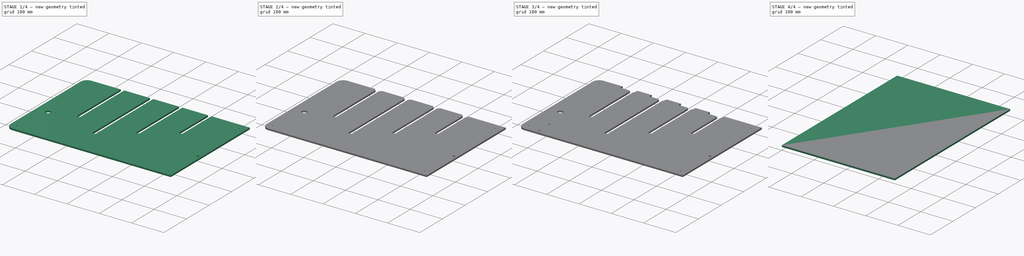
[diagram: build sequence overview — one tinted view per stage of 4, left to right]
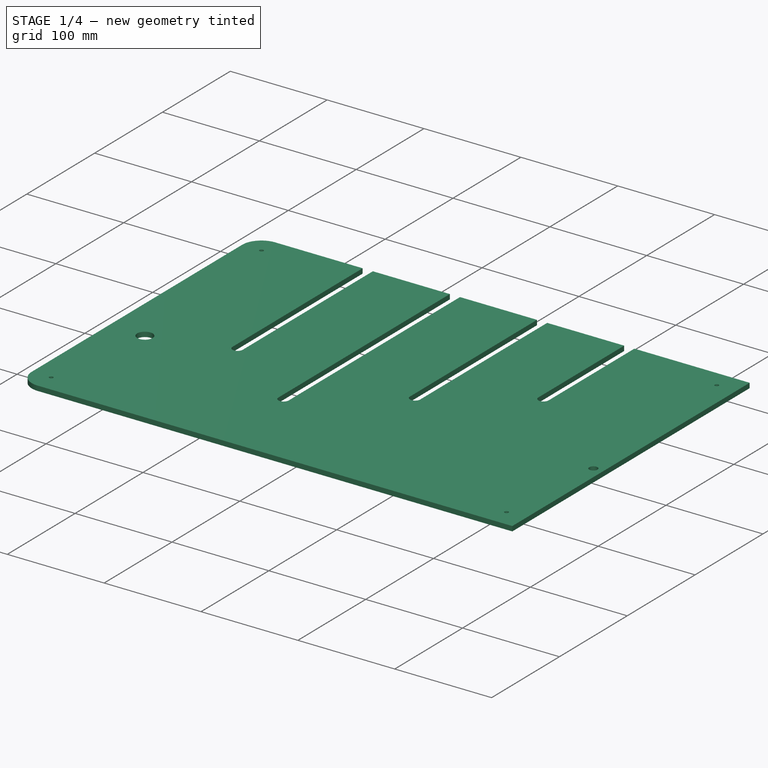
[diagram: stage 1 of 4 — iso view after this stage's code; geometry added in this stage tinted green]
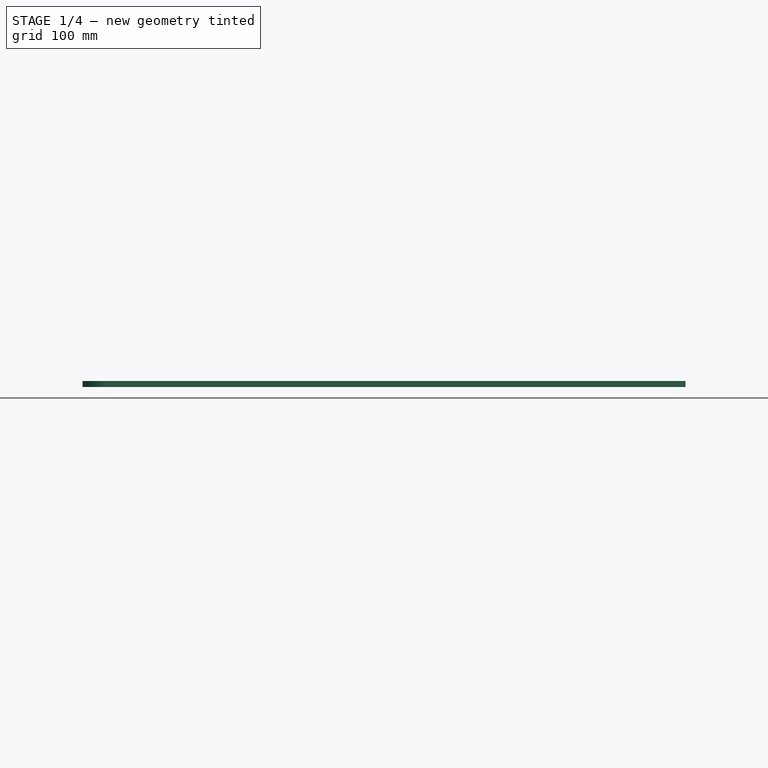
[diagram: stage 1 of 4 — front view after this stage's code; geometry added in this stage tinted green]
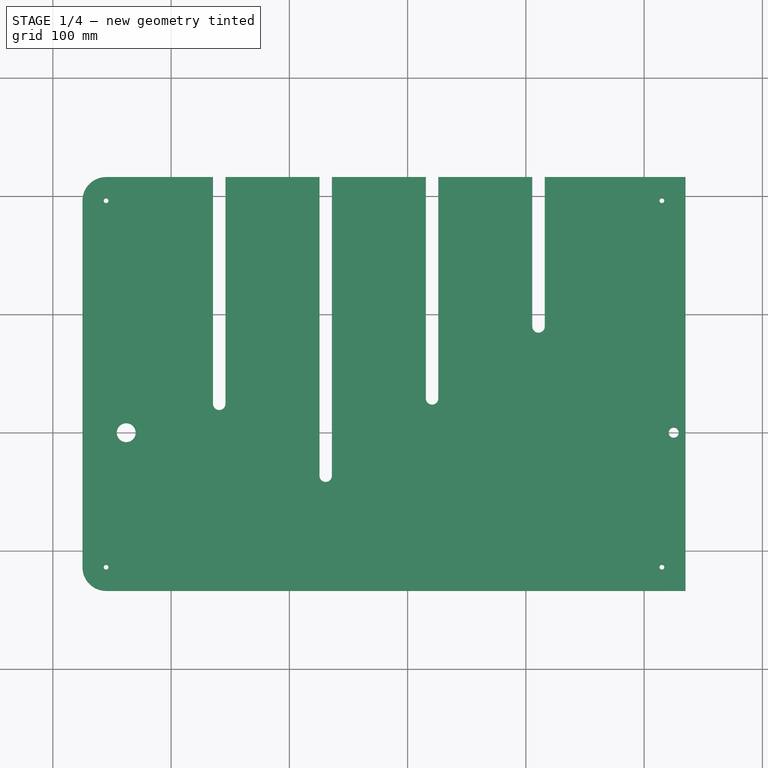
[diagram: stage 1 of 4 — top view after this stage's code; geometry added in this stage tinted green]
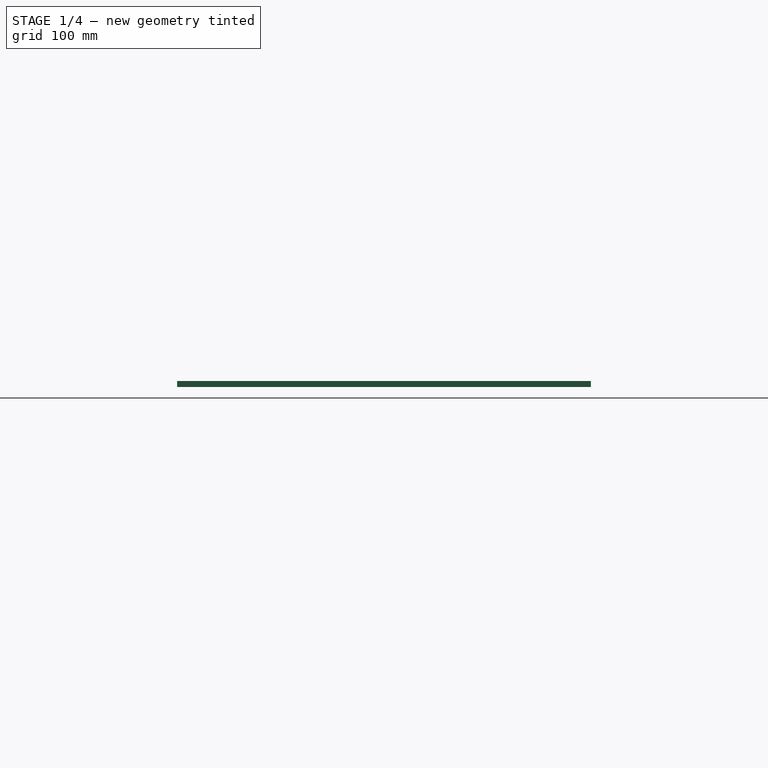
[diagram: stage 1 of 4 — right view after this stage's code; geometry added in this stage tinted green]
FCSTD DOCUMENT  (FreeCAD 0.19R23141 (Git))
Label: glass-cam
License: All rights reserved
LicenseURL: http://en.wikipedia.org/wiki/All_rights_reserved
objects: Path::FeaturePython×9, Sketcher::SketchObject×6, PartDesign::Pocket×4, PartDesign::Chamfer×4, Part::FeaturePython×4, App::FeaturePython×2, App::DocumentObjectGroup×2, Path::FeatureCompoundPython×2, PartDesign::ShapeBinder×1, PartDesign::Pad×1, PartDesign::Fillet×1, PartDesign::Body×1
note: 33 computed .brp shape members not serialized (recipe doc carries the construction recipe); baked Part::Feature solids carry a one-line shape summary decoded from their .brp

FEATURE [Sketcher::SketchObject] Sketch  label="MasterSketch"
  MapMode = 5
  sketch-geometry (22):
    g0: Circle CenterX=-238 CenterY=0 CenterZ=0 NormalX=0 NormalY=0 NormalZ=1 AngleXU=0 Radius=16.25
    g1: Circle CenterX=225 CenterY=0 CenterZ=0 NormalX=0 NormalY=0 NormalZ=1 AngleXU=0 Radius=79.25
    g2: Circle CenterX=-159.323 CenterY=24.4049 CenterZ=0 NormalX=0 NormalY=0 NormalZ=1 AngleXU=0 Radius=66.125
    g3: Circle CenterX=-69.3232 CenterY=-36.4177 CenterZ=0 NormalX=0 NormalY=0 NormalZ=1 AngleXU=0 Radius=55.625
    g4: Circle CenterX=20.6768 CenterY=28.9777 CenterZ=0 NormalX=0 NormalY=0 NormalZ=1 AngleXU=0 Radius=81.875
    g5: Circle CenterX=110.677 CenterY=89.8003 CenterZ=0 NormalX=0 NormalY=0 NormalZ=1 AngleXU=0 Radius=66.125
    g6: LineSegment StartX=-275 StartY=216.2 StartZ=0 EndX=275 EndY=216.2 EndZ=0
    g7: LineSegment StartX=275 StartY=216.2 StartZ=0 EndX=275 EndY=-133.8 EndZ=0
    g8: LineSegment StartX=275 StartY=-133.8 StartZ=0 EndX=-275 EndY=-133.8 EndZ=0
    g9: LineSegment StartX=-275 StartY=-133.8 StartZ=0 EndX=-275 EndY=216.2 EndZ=0
    g10: Circle CenterX=-159.323 CenterY=24.4049 CenterZ=0 NormalX=0 NormalY=0 NormalZ=1 AngleXU=0 Radius=53
    g11: Circle CenterX=-69.3232 CenterY=-36.4177 CenterZ=0 NormalX=0 NormalY=0 NormalZ=1 AngleXU=0 Radius=29.375
    g12: Circle CenterX=20.6768 CenterY=28.9777 CenterZ=0 NormalX=0 NormalY=0 NormalZ=1 AngleXU=0 Radius=42.5
    g13: Circle CenterX=110.677 CenterY=89.8003 CenterZ=0 NormalX=0 NormalY=0 NormalZ=1 AngleXU=0 Radius=13.625
    g14: Circle CenterX=225 CenterY=0 CenterZ=0 NormalX=0 NormalY=0 NormalZ=1 AngleXU=0 Radius=63.5
    g15: LineSegment [constr] StartX=-159.323 StartY=24.4049 StartZ=0 EndX=-159.323 EndY=0 EndZ=0
    g16: LineSegment [constr] StartX=-69.3232 StartY=-36.4177 StartZ=0 EndX=-69.3232 EndY=0 EndZ=0
    g17: LineSegment [constr] StartX=20.6768 StartY=28.9777 StartZ=0 EndX=20.6768 EndY=0 EndZ=0
    g18: LineSegment [constr] StartX=110.677 StartY=89.8003 StartZ=0 EndX=110.677 EndY=0 EndZ=0
    g19: LineSegment [constr] StartX=-159.323 StartY=0 StartZ=0 EndX=-69.3232 EndY=0 EndZ=0
    g20: LineSegment [constr] StartX=-69.3232 StartY=0 StartZ=0 EndX=20.6768 EndY=0 EndZ=0
    g21: LineSegment [constr] StartX=20.6768 StartY=0 StartZ=0 EndX=110.677 EndY=0 EndZ=0
  constraints (61):
    c: PointOnObject(g0,g-1)
    c: PointOnObject(g1,g-1)
    c: Coincident(g6,g7)
    c: Coincident(g7,g8)
    c: Coincident(g8,g9)
    c: Coincident(g9,g6)
    c: Horizontal(g6)
    c: Vertical(g7)
    c: Vertical(g9)
    c: DistanceX(g6,g6) = 550
    c: DistanceY(g9,g9) = 350
    c: Radius(g2) = 66.125
    c: Radius(g0) = 16.25
    c: Tangent(g2,g0)
    c: Radius(g3) = 55.625
    c: Coincident(g10,g2)
    c: Coincident(g11,g3)
    c: Coincident(g12,g4)
    c: Coincident(g13,g5)
    c: Coincident(g14,g1)
    c: Radius(g10) = 53
    c: Radius(g11) = 29.375
    c: Tangent(g3,g10)
    c: Tangent(g4,g11)
    c: Tangent(g5,g12)
    c: Tangent(g1,g5)
    c: Radius(g4) = 81.875
    c: Radius(g12) = 42.5
    c: Radius(g5) = 66.125
    c: Radius(g13) = 13.625
    c: Coincident(g15,g2)
    c: PointOnObject(g15,g-1)
    c: Coincident(g16,g3)
    c: PointOnObject(g16,g-1)
    c: Vertical(g16)
    c: Coincident(g17,g4)
    c: PointOnObject(g17,g-1)
    c: Vertical(g17)
    c: Coincident(g18,g5)
    c: PointOnObject(g18,g-1)
    c: Vertical(g18)
    c: Vertical(g15)
    c: Coincident(g19,g15)
    c: Coincident(g19,g16)
    c: Coincident(g20,g16)
    c: Coincident(g20,g17)
    c: Coincident(g21,g17)
    c: Coincident(g21,g18)
    c: Radius(g1) = 79.25
    c: Radius(g14) = 63.5
    c: Distance(g19) = 90
    c: DistanceX(g6,g0) = 37
    c: Symmetric(g8,g7,g-2)
    c: Equal(g19,g20)
    c: Equal(g20,g21)
    c: Distance(g2,g3) = 108.625
    c: Distance(g3,g4) = 111.25
    c: Distance(g4,g5) = 108.625
    c: Distance(g5,g1) = 145.375
    c: DistanceY(g8,g-1) = 133.8
    c: DistanceX(g1,g6) = 50
FEATURE [PartDesign::ShapeBinder] ShapeBinder003
  Support = -> [Sketch]
  TraceSupport = false
FEATURE [Sketcher::SketchObject] Sketch018
  ExternalGeometry = -> [ShapeBinder003]
  MapMode = 5
  Support = -> [XY_Plane011]
  sketch-geometry (4):
    g0: LineSegment StartX=-275 StartY=216.2 StartZ=0 EndX=235 EndY=216.2 EndZ=0
    g1: LineSegment StartX=235 StartY=216.2 StartZ=0 EndX=235 EndY=-133.8 EndZ=0
    g2: LineSegment StartX=235 StartY=-133.8 StartZ=0 EndX=-275 EndY=-133.8 EndZ=0
    g3: LineSegment StartX=-275 StartY=-133.8 StartZ=0 EndX=-275 EndY=216.2 EndZ=0
  constraints (11):
    c: Coincident(g2,g3)
    c: Coincident(g3,g0)
    c: Horizontal(g0)
    c: Horizontal(g2)
    c: Vertical(g1)
    c: Vertical(g3)
    c: Coincident(g0,g-3)
    c: Coincident(g2,g1)
    c: PointOnObject(g1,g-4)
    c: Coincident(g1,g0)
    c: DistanceX(g0,g-3) = 40
FEATURE [PartDesign::Pad] Pad015
  Direction = (1,1,1)
  Length = 5
  Length2 = 100
  Profile = -> Sketch018
  Refine = true
  Type = 0
FEATURE [Sketcher::SketchObject] Sketch019
  ExternalGeometry = -> [ShapeBinder003,Pad015]
  MapMode = 5
  Placement = pos=(0,0,5) rot=(0,0,1;0rad)
  Support = -> [Pad015]
  sketch-geometry (18):
    g0: Circle CenterX=-238 CenterY=0 CenterZ=0 NormalX=0 NormalY=0 NormalZ=1 AngleXU=0 Radius=8
    g1: Circle CenterX=225 CenterY=0 CenterZ=0 NormalX=0 NormalY=0 NormalZ=1 AngleXU=0 Radius=4.25
    g2: ArcOfCircle CenterX=-159.323 CenterY=24.4049 CenterZ=0 NormalX=0 NormalY=0 NormalZ=1 AngleXU=0 Radius=5.25 StartAngle=3.14159 EndAngle=6.28319
    g3: ArcOfCircle CenterX=-159.323 CenterY=216.2 CenterZ=0 NormalX=0 NormalY=0 NormalZ=1 AngleXU=0 Radius=5.25 StartAngle=7e-16 EndAngle=3.14159
    g4: LineSegment StartX=-154.073 StartY=24.4049 StartZ=0 EndX=-154.073 EndY=216.2 EndZ=0
    g5: LineSegment StartX=-164.573 StartY=24.4049 StartZ=0 EndX=-164.573 EndY=216.2 EndZ=0
    g6: ArcOfCircle CenterX=-69.3232 CenterY=-36.4177 CenterZ=0 NormalX=0 NormalY=0 NormalZ=1 AngleXU=0 Radius=5.25 StartAngle=3.14159 EndAngle=6.28319
    g7: ArcOfCircle CenterX=-69.3232 CenterY=216.2 CenterZ=0 NormalX=0 NormalY=0 NormalZ=1 AngleXU=0 Radius=5.25 StartAngle=1e-16 EndAngle=3.14159
    g8: LineSegment StartX=-64.0732 StartY=-36.4177 StartZ=0 EndX=-64.0732 EndY=216.2 EndZ=0
    g9: LineSegment StartX=-74.5732 StartY=-36.4177 StartZ=0 EndX=-74.5732 EndY=216.2 EndZ=0
    g10: ArcOfCircle CenterX=20.6768 CenterY=28.9777 CenterZ=0 NormalX=0 NormalY=0 NormalZ=1 AngleXU=0 Radius=5.25 StartAngle=3.14159 EndAngle=6.28319
    g11: ArcOfCircle CenterX=20.6768 CenterY=216.2 CenterZ=0 NormalX=0 NormalY=0 NormalZ=1 AngleXU=0 Radius=5.25 StartAngle=6e-16 EndAngle=3.14159
    g12: LineSegment StartX=25.9268 StartY=28.9777 StartZ=0 EndX=25.9268 EndY=216.2 EndZ=0
    g13: LineSegment StartX=15.4268 StartY=28.9777 StartZ=0 EndX=15.4268 EndY=216.2 EndZ=0
    g14: ArcOfCircle CenterX=110.677 CenterY=89.8003 CenterZ=0 NormalX=0 NormalY=0 NormalZ=1 AngleXU=0 Radius=5.25 StartAngle=3.14159 EndAngle=6.28319
    g15: ArcOfCircle CenterX=110.677 CenterY=216.2 CenterZ=0 NormalX=0 NormalY=0 NormalZ=1 AngleXU=0 Radius=5.25 StartAngle=-1.8e-15 EndAngle=3.14159
    g16: LineSegment StartX=115.927 StartY=89.8003 StartZ=0 EndX=115.927 EndY=216.2 EndZ=0
    g17: LineSegment StartX=105.427 StartY=89.8003 StartZ=0 EndX=105.427 EndY=216.2 EndZ=0
  constraints (40):
    c: Coincident(g0,g-4)
    c: Coincident(g1,g-9)
    c: Tangent(g2,g5)
    c: Tangent(g2,g4)
    c: Tangent(g4,g3)
    c: Tangent(g5,g3)
    c: Vertical(g4)
    c: Equal(g2,g3)
    c: Coincident(g2,g-3)
    c: Tangent(g6,g9)
    c: Tangent(g6,g8)
    c: Tangent(g8,g7)
    c: Tangent(g9,g7)
    c: Vertical(g8)
    c: Equal(g6,g7)
    c: Coincident(g6,g-5)
    c: Tangent(g10,g13)
    c: Tangent(g10,g12)
    c: Tangent(g12,g11)
    c: Tangent(g13,g11)
    c: Vertical(g12)
    c: Equal(g10,g11)
    c: Coincident(g10,g-6)
    c: Tangent(g14,g17)
    c: Tangent(g14,g16)
    c: Tangent(g16,g15)
    c: Tangent(g17,g15)
    c: Vertical(g16)
    c: Equal(g14,g15)
    c: Coincident(g14,g-8)
    c: Equal(g3,g7)
    c: Equal(g7,g11)
    c: Equal(g11,g15)
    c: PointOnObject(g3,g-7)
    c: PointOnObject(g7,g-7)
    c: PointOnObject(g11,g-7)
    c: PointOnObject(g15,g-7)
    c: Radius(g0) = 8
    c: Radius(g1) = 4.25
    c: Radius(g2) = 5.25
FEATURE [PartDesign::Pocket] Pocket011
  BaseFeature = -> Pad015
  Length = 5
  Length2 = 100
  Profile = -> Sketch019
  Refine = true
  Type = 1
FEATURE [PartDesign::Fillet] Fillet005
  Base = -> Pocket011 [Edge4,Edge48]
  BaseFeature = -> Pocket011
  Radius = 20
  Refine = true
  SupportTransform = false
FEATURE [Sketcher::SketchObject] Sketch020
  ExternalGeometry = -> [Fillet005]
  MapMode = 5
  Placement = pos=(0,0,5) rot=(0,0,1;0rad)
  Support = -> [Fillet005]
  sketch-geometry (4):
    g0: Circle CenterX=-255 CenterY=196.2 CenterZ=0 NormalX=0 NormalY=0 NormalZ=1 AngleXU=0 Radius=2
    g1: Circle CenterX=-255 CenterY=-113.8 CenterZ=0 NormalX=0 NormalY=0 NormalZ=1 AngleXU=0 Radius=2
    g2: Circle CenterX=215 CenterY=-113.8 CenterZ=0 NormalX=0 NormalY=0 NormalZ=1 AngleXU=0 Radius=2
    g3: Circle CenterX=215 CenterY=196.2 CenterZ=0 NormalX=0 NormalY=0 NormalZ=1 AngleXU=0 Radius=2
  constraints (10):
    c: Coincident(g0,g-3)
    c: Coincident(g1,g-4)
    c: Equal(g3,g0)
    c: Equal(g0,g1)
    c: Equal(g1,g2)
    c: Radius(g1) = 2
    c: Horizontal(g3,g0)
    c: Horizontal(g2,g1)
    c: DistanceX(g3,g-5) = 20
    c: DistanceX(g2,g-5) = 20
FEATURE [PartDesign::Pocket] Pocket012
  BaseFeature = -> Fillet005
  Length = 5
  Length2 = 100
  Profile = -> Sketch020
  Refine = true
  Type = 1
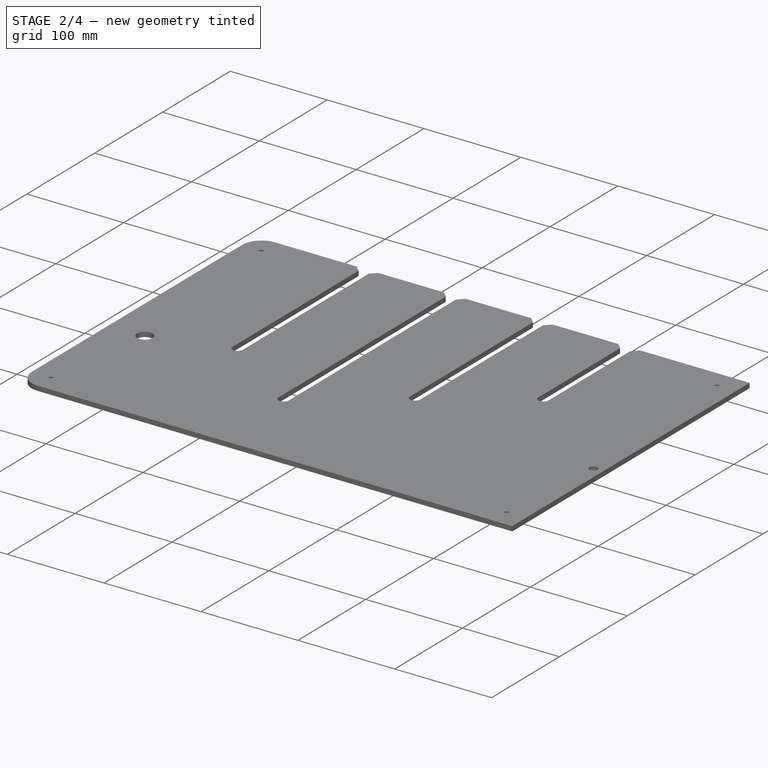
[diagram: stage 2 of 4 — iso view after this stage's code; geometry added in this stage tinted green]
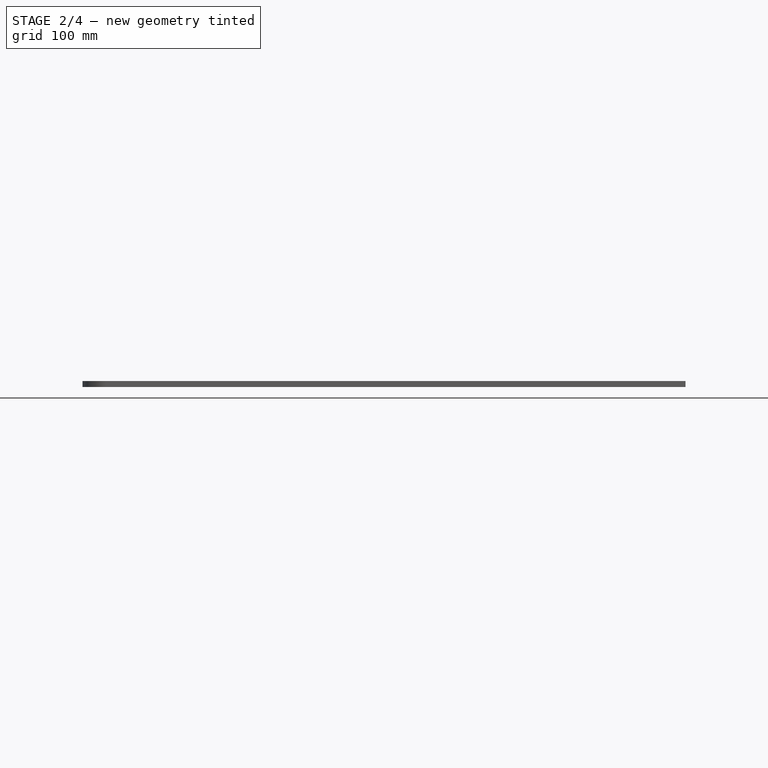
[diagram: stage 2 of 4 — front view after this stage's code; geometry added in this stage tinted green]
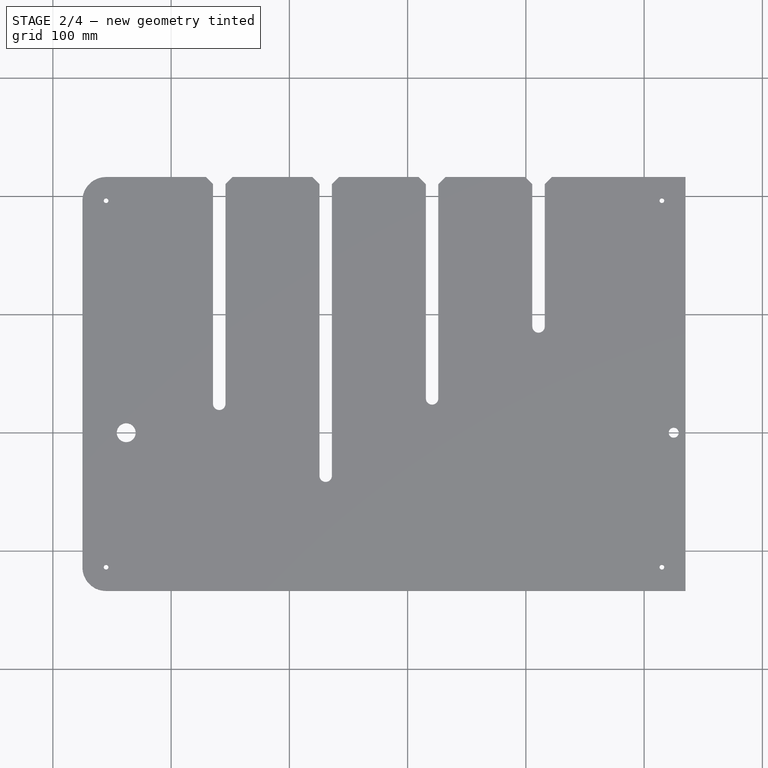
[diagram: stage 2 of 4 — top view after this stage's code; geometry added in this stage tinted green]
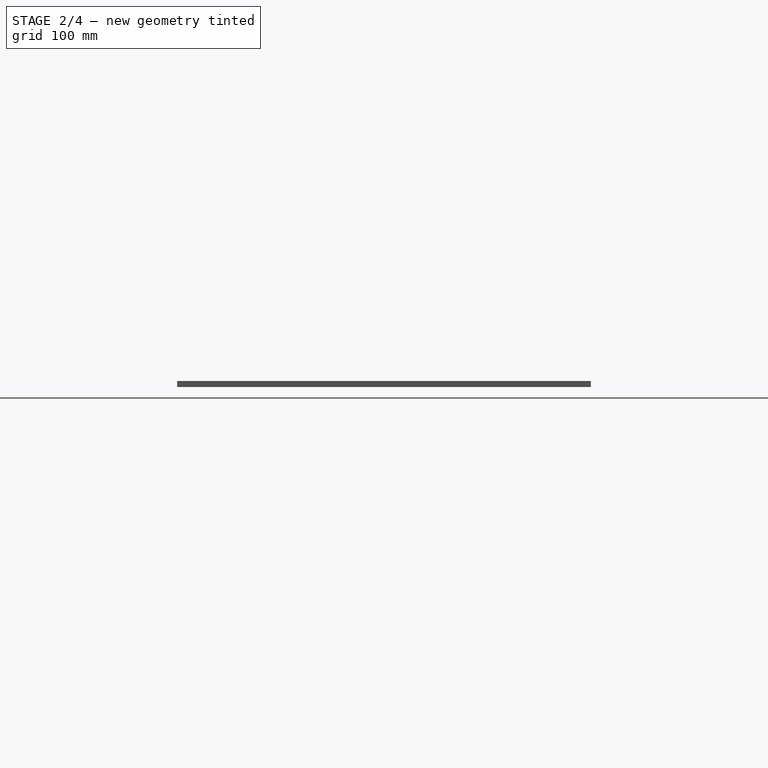
[diagram: stage 2 of 4 — right view after this stage's code; geometry added in this stage tinted green]
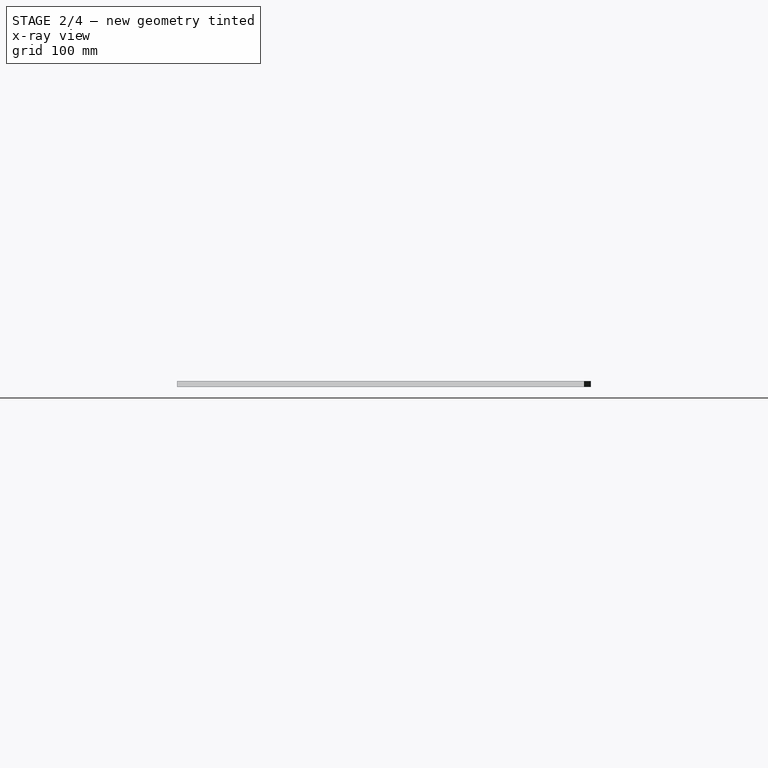
[diagram: stage 2 of 4 — x-ray composite at the right view; earlier geometry ghosted, this stage's added geometry solid]
FEATURE [PartDesign::Chamfer] Chamfer009
  Angle = 45
  Base = -> Pocket012 [Edge3,Edge68,Edge70,Edge76,Edge78,Edge73,Edge71,Edge65]
  BaseFeature = -> Pocket012
  ChamferType = 0
  FlipDirection = false
  Refine = true
  Size = 6
  Size2 = 1
  SupportTransform = false
FEATURE [PartDesign::Chamfer] Chamfer010
  Angle = 45
  Base = -> Chamfer009 [Edge4,Edge52,Edge64,Edge65,Edge53]
  BaseFeature = -> Chamfer009
  ChamferType = 0
  FlipDirection = false
  Refine = true
  Size = 0.1
  Size2 = 1
  SupportTransform = false
FEATURE [PartDesign::Chamfer] Chamfer011
  Angle = 45
  Base = -> Chamfer010 [Edge80,Edge77,Edge75,Edge79]
  BaseFeature = -> Chamfer010
  ChamferType = 0
  FlipDirection = false
  Refine = true
  Size = 0.1
  Size2 = 1
  SupportTransform = false
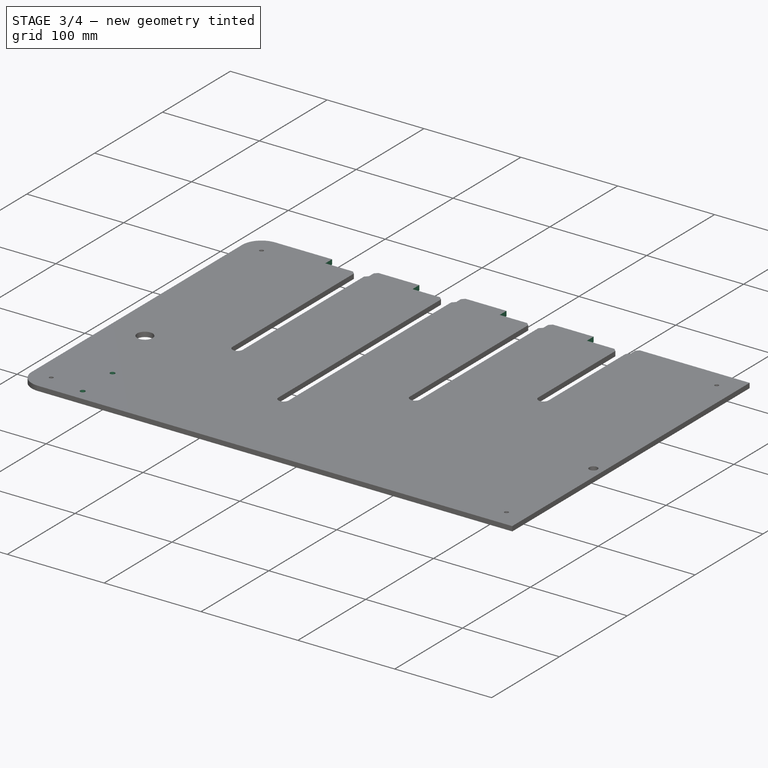
[diagram: stage 3 of 4 — iso view after this stage's code; geometry added in this stage tinted green]
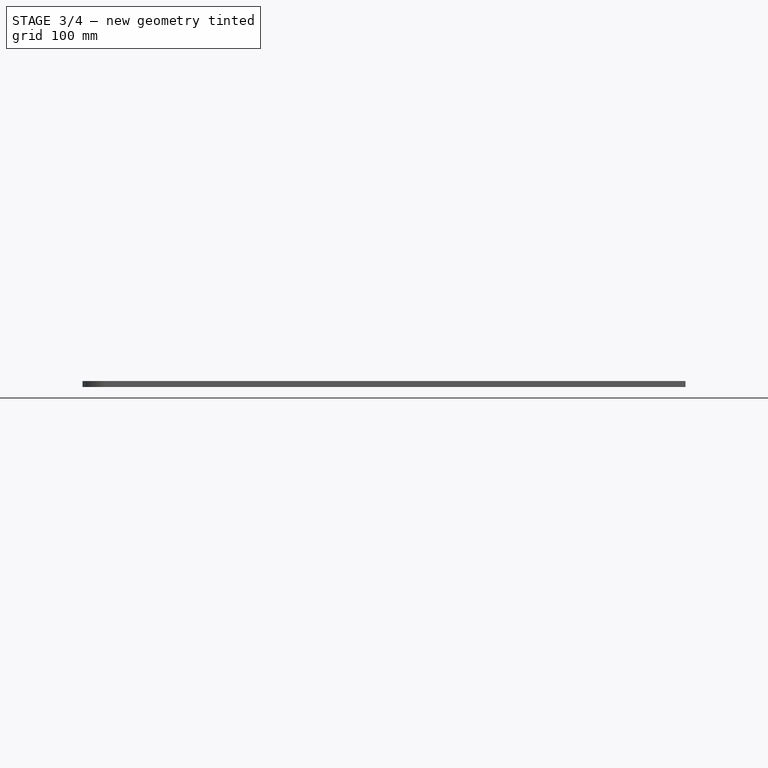
[diagram: stage 3 of 4 — front view after this stage's code; geometry added in this stage tinted green]
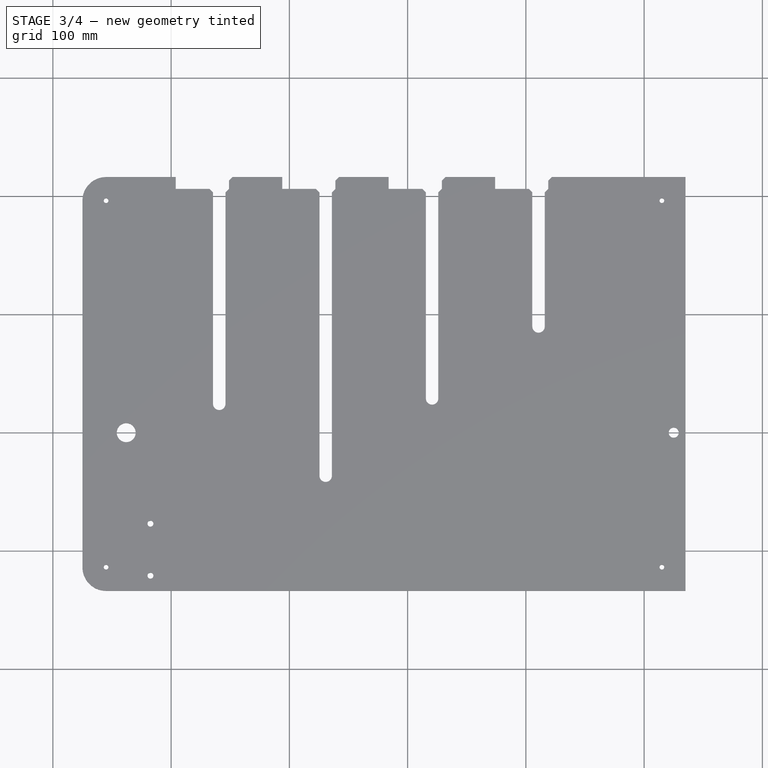
[diagram: stage 3 of 4 — top view after this stage's code; geometry added in this stage tinted green]
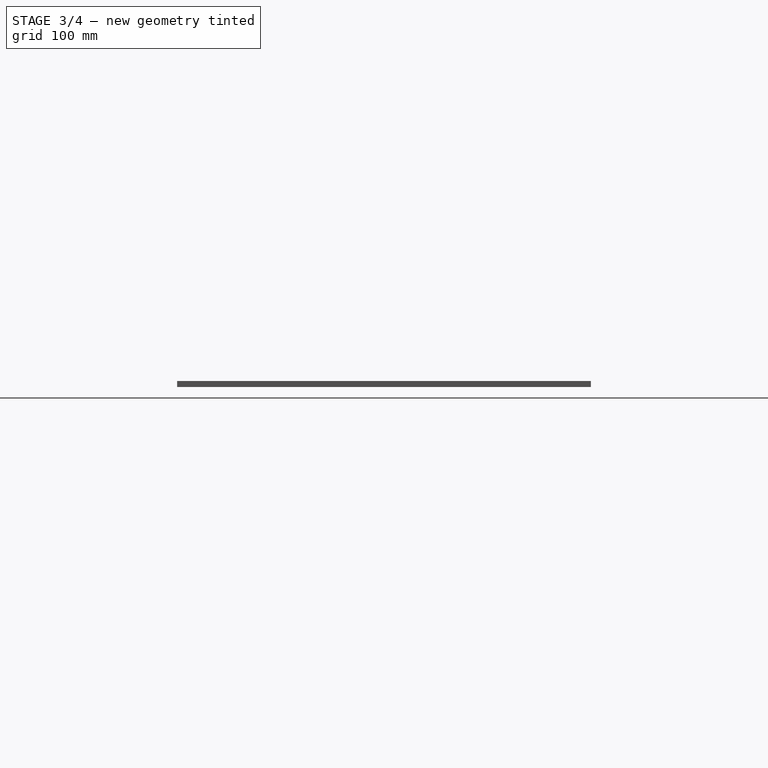
[diagram: stage 3 of 4 — right view after this stage's code; geometry added in this stage tinted green]
FEATURE [Sketcher::SketchObject] Sketch052
  ExternalGeometry = -> [Chamfer011,ShapeBinder003]
  MapMode = 5
  Placement = pos=(0,0,5) rot=(0,0,1;0rad)
  Support = -> [Chamfer011]
  sketch-geometry (16):
    g0: LineSegment StartX=-196.073 StartY=216.2 StartZ=0 EndX=-151.073 EndY=216.2 EndZ=0
    g1: LineSegment StartX=-151.073 StartY=216.2 StartZ=0 EndX=-151.073 EndY=206.2 EndZ=0
    g2: LineSegment StartX=-151.073 StartY=206.2 StartZ=0 EndX=-196.073 EndY=206.2 EndZ=0
    g3: LineSegment StartX=-196.073 StartY=206.2 StartZ=0 EndX=-196.073 EndY=216.2 EndZ=0
    g4: LineSegment StartX=-106.073 StartY=216.2 StartZ=0 EndX=-61.0732 EndY=216.2 EndZ=0
    g5: LineSegment StartX=-61.0732 StartY=216.2 StartZ=0 EndX=-61.0732 EndY=206.2 EndZ=0
    g6: LineSegment StartX=-61.0732 StartY=206.2 StartZ=0 EndX=-106.073 EndY=206.2 EndZ=0
    g7: LineSegment StartX=-106.073 StartY=206.2 StartZ=0 EndX=-106.073 EndY=216.2 EndZ=0
    g8: LineSegment StartX=-16.0732 StartY=216.2 StartZ=0 EndX=28.9268 EndY=216.2 EndZ=0
    g9: LineSegment StartX=28.9268 StartY=216.2 StartZ=0 EndX=28.9268 EndY=206.2 EndZ=0
    g10: LineSegment StartX=28.9268 StartY=206.2 StartZ=0 EndX=-16.0732 EndY=206.2 EndZ=0
    g11: LineSegment StartX=-16.0732 StartY=206.2 StartZ=0 EndX=-16.0732 EndY=216.2 EndZ=0
    g12: LineSegment StartX=73.9268 StartY=216.2 StartZ=0 EndX=118.927 EndY=216.2 EndZ=0
    g13: LineSegment StartX=118.927 StartY=216.2 StartZ=0 EndX=118.927 EndY=206.2 EndZ=0
    g14: LineSegment StartX=118.927 StartY=206.2 StartZ=0 EndX=73.9268 EndY=206.2 EndZ=0
    g15: LineSegment StartX=73.9268 StartY=206.2 StartZ=0 EndX=73.9268 EndY=216.2 EndZ=0
  constraints (48):
    c: Coincident(g0,g1)
    c: Coincident(g1,g2)
    c: Coincident(g2,g3)
    c: Coincident(g3,g0)
    c: Horizontal(g0)
    c: Horizontal(g2)
    c: Vertical(g1)
    c: Vertical(g3)
    c: PointOnObject(g0,g-7)
    c: Coincident(g4,g5)
    c: Coincident(g5,g6)
    c: Coincident(g6,g7)
    c: Coincident(g7,g4)
    c: Horizontal(g4)
    c: Horizontal(g6)
    c: Vertical(g5)
    c: Vertical(g7)
    c: PointOnObject(g4,g-7)
    c: Coincident(g8,g9)
    c: Coincident(g9,g10)
    c: Coincident(g10,g11)
    c: Coincident(g11,g8)
    c: Horizontal(g8)
    c: Horizontal(g10)
    c: Vertical(g9)
    c: Vertical(g11)
    c: PointOnObject(g8,g-7)
    c: Coincident(g12,g13)
    c: Coincident(g13,g14)
    c: Coincident(g14,g15)
    c: Coincident(g15,g12)
    c: Horizontal(g12)
    c: Horizontal(g14)
    c: Vertical(g13)
    c: Vertical(g15)
    c: PointOnObject(g12,g-7)
    c: Equal(g1,g5)
    c: Equal(g5,g9)
    c: Equal(g9,g13)
    c: DistanceY(g1,g1) = 10
    c: Equal(g0,g4)
    c: Equal(g4,g8)
    c: Equal(g8,g12)
    c: DistanceX(g-3,g0) = 13.5
    c: DistanceX(g2,g2) = 45
    c: DistanceX(g-4,g4) = 13.5
    c: DistanceX(g-5,g8) = 13.5
    c: DistanceX(g-6,g12) = 13.5
FEATURE [PartDesign::Pocket] Pocket033
  BaseFeature = -> Chamfer011
  Length = 5
  Length2 = 100
  Profile = -> Sketch052
  Refine = true
  Type = 1
FEATURE [PartDesign::Chamfer] Chamfer024
  Angle = 45
  Base = -> Pocket033 [Edge137,Edge131,Edge117,Edge111,Edge97,Edge91,Edge77,Edge71]
  BaseFeature = -> Pocket033
  ChamferType = 0
  FlipDirection = false
  Refine = true
  Size = 2.99
  Size2 = 1
  SupportTransform = false
FEATURE [Sketcher::SketchObject] Sketch068
  MapMode = 5
  Placement = pos=(0,0,5) rot=(0,0,1;0rad)
  Support = -> [Chamfer024]
  sketch-geometry (2):
    g0: Circle CenterX=-217.5 CenterY=-77 CenterZ=0 NormalX=0 NormalY=0 NormalZ=1 AngleXU=0 Radius=2.5
    g1: Circle CenterX=-217.5 CenterY=-121 CenterZ=0 NormalX=0 NormalY=0 NormalZ=1 AngleXU=0 Radius=2.5
  constraints (6):
    c: Equal(g1,g0)
    c: Vertical(g1,g0)
    c: Radius(g1) = 2.5
    c: DistanceY(g1,g0) = 44
    c: DistanceX(g0) = -217.5
    c: DistanceY(g0) = -77
FEATURE [PartDesign::Pocket] Pocket043
  BaseFeature = -> Chamfer024
  Length = 5
  Length2 = 100
  Profile = -> Sketch068
  Refine = true
  Type = 1
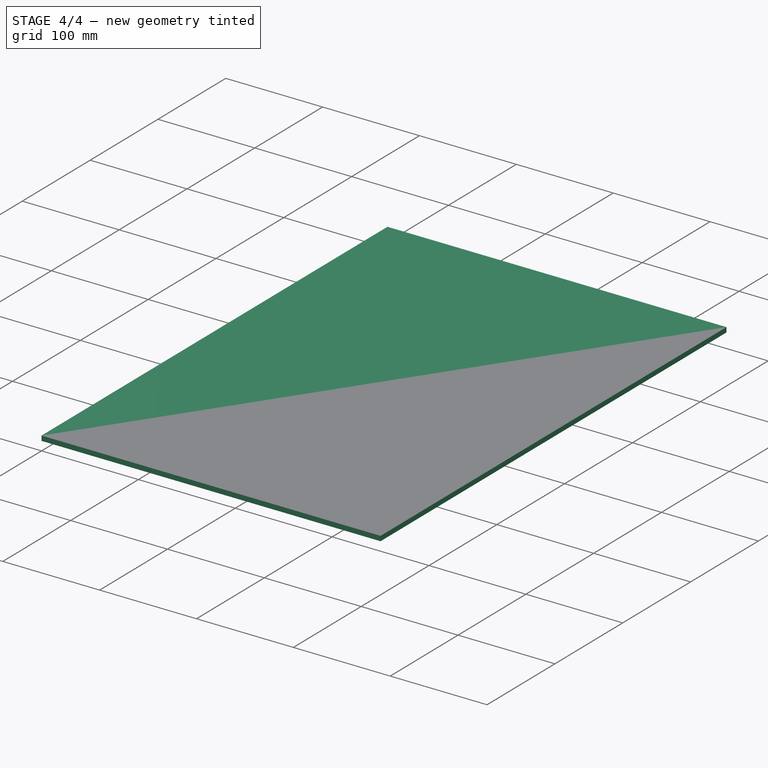
[diagram: stage 4 of 4 — iso view after this stage's code; geometry added in this stage tinted green]
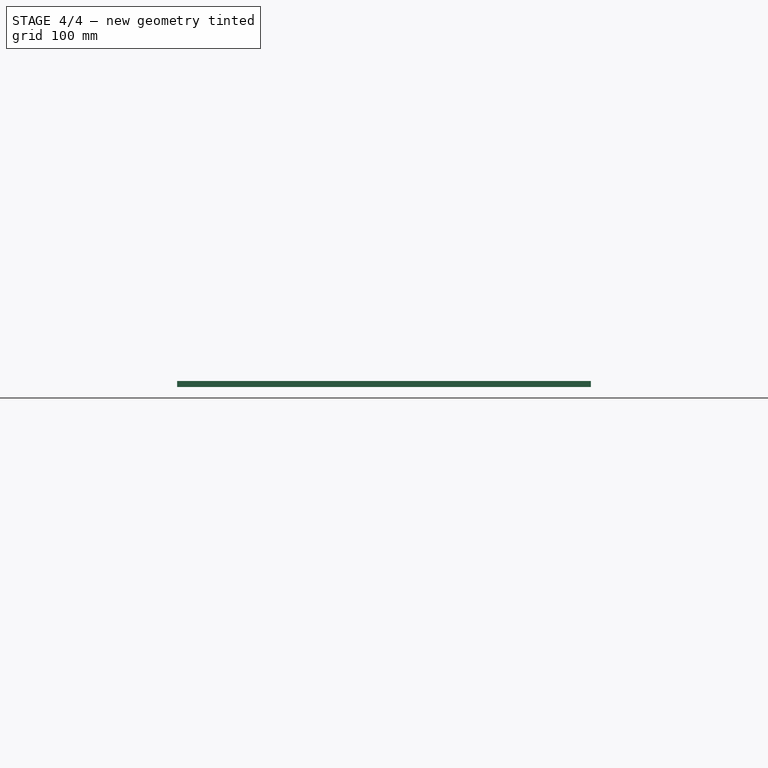
[diagram: stage 4 of 4 — front view after this stage's code; geometry added in this stage tinted green]
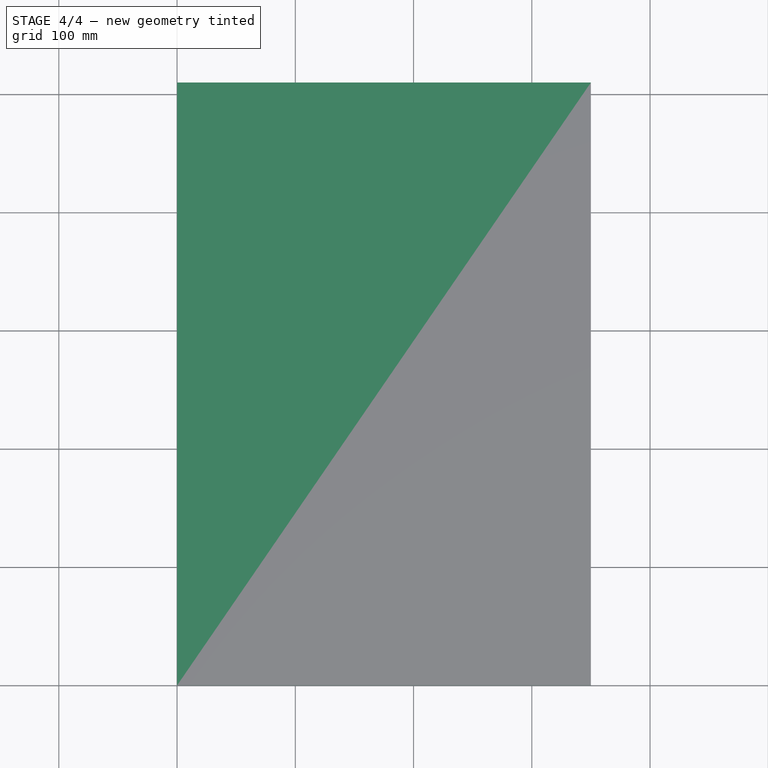
[diagram: stage 4 of 4 — top view after this stage's code; geometry added in this stage tinted green]
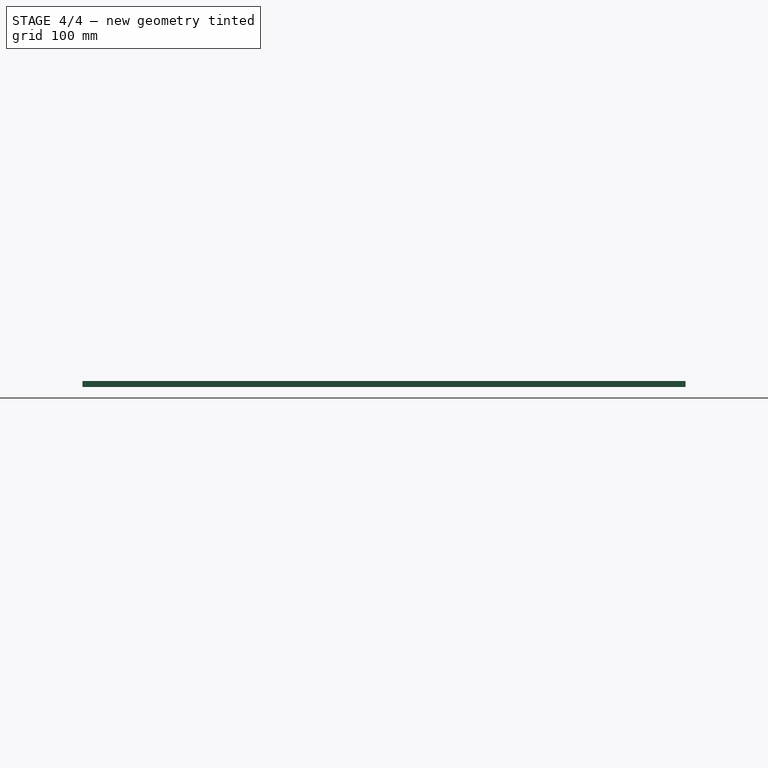
[diagram: stage 4 of 4 — right view after this stage's code; geometry added in this stage tinted green]
FEATURE [PartDesign::Body] Body011  label="Glass"
  Group = -> [ShapeBinder003,Sketch018,Pad015,Sketch019,Pocket011,Fillet005,Sketch020,Pocket012,Chamfer009,Chamfer010,Chamfer011,Sketch052,Pocket033,Chamfer024,Sketch068,Pocket043]
  Origin = -> Origin011
  Placement = pos=(0,0,10.25) rot=(0,0,1;0rad)
  Tip = -> Pocket043
FEATURE [App::FeaturePython] SetupSheet  # Path/CAM operation (typed FeaturePython)
  ClearanceHeightExpression = OpStockZMax+SetupSheet.ClearanceHeightOffset
  ClearanceHeightOffset = 5
  CoolantMode = 0
  CoolantModes = None | Flood | Mist
  FinalDepthExpression = OpFinalDepth
  HorizRapid = 0
  SafeHeightExpression = OpStockZMax+SetupSheet.SafeHeightOffset
  SafeHeightOffset = 3
  StartDepthExpression = OpStartDepth
  StepDownExpression = OpToolDiameter
  VertRapid = 0
FEATURE [Part::FeaturePython] Clone  label="Model-Glass"  # Draft clone (typed FeaturePython)
  AttacherType = Attacher::AttachEngine3D
  Fuse = false
  Objects = -> [Body011]
  PathResource = Model
  Placement = pos=(216.2,275,-5) rot=(0,0,1;1.5708rad)
  Scale = (1,1,1)
FEATURE [App::DocumentObjectGroup] Model
  Group = -> [Clone]
FEATURE [Path::FeaturePython] Default_Tool  label="TC: Default Tool"  # Path/CAM operation (typed FeaturePython)
  HorizFeed = 11.6667
  HorizRapid = 0
  SpindleDir = 0
  SpindleSpeed = 16000
  ToolNumber = 1
  VertFeed = 5.83333
  VertRapid = 0
  expr: HorizRapid = SetupSheet.HorizRapid
  expr: VertRapid = SetupSheet.VertRapid
FEATURE [Part::FeaturePython] Stock  # WARN: FeaturePython — macro-defined, semantics opaque (R4)
  Base = -> Model
  ExtXneg = 0
  ExtXpos = 0
  ExtYneg = 0
  ExtYpos = 0
  ExtZneg = 0
  ExtZpos = 0
  Placement = pos=(0,0,-5) rot=(0,0,1;0rad)
  StockType = FromBase
FEATURE [Path::FeaturePython] Helix  # Path/CAM operation (typed FeaturePython)
  Active = true
  Base = -> [Clone]
  ClearanceHeight = 5
  CoolantMode = None
  CycleTime = 00:02:39
  Direction = 0
  EnableRotation = 0
  FinalDepth = -5.5
  OpFinalDepth = -5
  OpStartDepth = 0
  OpStockZMax = 1.87e-14
  OpStockZMin = -5
  OpToolDiameter = 2
  SafeHeight = 3
  StartDepth = 0
  StartRadius = 0
  StartSide = 0
  StepDown = 2
  StepOver = 100
  ToolController = -> Default_Tool
  expr: ClearanceHeight = OpStockZMax + SetupSheet.ClearanceHeightOffset
  expr: SafeHeight = OpStockZMax + SetupSheet.SafeHeightOffset
  expr: StepDown = OpToolDiameter
  expr: FinalDepth = -5.5
  expr: StartDepth = OpStartDepth
FEATURE [Path::FeaturePython] Profile  # Path/CAM operation (typed FeaturePython)
  Active = true
  AreaParams:
    Tolerance = 1e-07
    FitArcs = True
    Simplify = False
    CleanDistance = 0.0
    Accuracy = 0.01
    Unit = 1.0
    MinArcPoints = 4
    MaxArcPoints = 100
    ClipperScale = 10000000.0
    Fill = 0
    Coplanar = 0
    Reorient = True
    Outline = False
    Explode = False
    OpenMode = 0
    Deflection = 0.01
    SubjectFill = 0
    ClipFill = 0
    Offset = 1.0
    ExtraPass = 0
    Stepover = 0.0
    LastStepover = 0.0
    JoinType = 0
    EndType = 0
    MiterLimit = 2.0
    RoundPrecision = 0.0
    PocketMode = 0
    ToolRadius = 1.0
    PocketExtraOffset = 0.0
    PocketStepover = 0.0
    PocketLastStepover = 0.0
    FromCenter = False
    Angle = 45.0
    AngleShift = 0.0
    Shift = 0.0
    Thicken = False
    SectionCount = -1
    Stepdown = 1.0
    SectionOffset = 0.0
    SectionTolerance = 1e-06
    SectionMode = 2
    Project = False
  AttemptInverseAngle = true
  ClearanceHeight = 5
  CoolantMode = None
  CycleTime = 00:28:16
  Direction = 0
  EnableRotation = 0
  ExpandProfile = 0
  ExpandProfileStepOver = 100
  FinalDepth = -5.5
  HandleMultipleFeatures = 1
  InverseAngle = false
  JoinType = 0
  LimitDepthToFace = true
  MiterLimit = 0.1
  OffsetExtra = 0
  OpFinalDepth = -5
  OpStartDepth = 0
  OpStockZMax = 0
  OpStockZMin = -5
  OpToolDiameter = 2
  PathParams = {'orientation': 1, 'feedrate': 11.666666666666666, 'feedrate_v': 5.833333333333333, 'verbose': True, 'resume_height': 3.0, 'retraction': 5.0, 'return_end': True, 'preamble': False}
  ReverseDirection = false
  SafeHeight = 3
  Side = 0
  StartDepth = 0
  StartPoint = (0,0,0)
  StepDown = 1
  ToolController = -> Default_Tool
  UseComp = true
  UseStartPoint = false
  processCircles = false
  processHoles = false
  processPerimeter = true
  expr: ClearanceHeight = OpStockZMax + SetupSheet.ClearanceHeightOffset
  expr: SafeHeight = OpStockZMax + SetupSheet.SafeHeightOffset
  expr: StepDown = 1
  expr: FinalDepth = -5.5
  expr: StartDepth = OpStartDepth
FEATURE [Path::FeaturePython] DressupTag  # Path/CAM operation (typed FeaturePython)
  Angle = 45
  Base = -> Profile
  Disabled = [10]
  Height = 2
  Positions = (13) [(351,265,-5.5),(209.36,-1,-5.5),(-1,43.27,-5.5),(102.377,111.427,-5.5),(-1,146.55,-5.5),(132.789,209.927,-5.5),(-1,234.29,-5.5),(148.84,291.43,-5.5),+5 more]
  Radius = 0
  SegmentationFactor = 50
  Width = 10
FEATURE [Path::FeatureCompoundPython] Operations  # Path/CAM operation (typed FeaturePython)
  Group = -> [Helix,DressupTag]
  UsePlacements = false
FEATURE [Path::FeaturePython] Job  # Path/CAM operation (typed FeaturePython)
  CycleTime = 00:30:55
  Fixtures = G54
  GeometryTolerance = 0.01
  LastPostProcessDate = 2020-12-07 19:10:29.951034
  LastPostProcessOutput = <userpath>/cad/gears-puzzle-2/gcode/glass.gcode
  Model = -> Model
  Operations = -> Operations
  OrderOutputBy = 0
  PostProcessor = 4
  SetupSheet = -> SetupSheet
  SplitOutput = false
  Stock = -> Stock
  ToolController = -> [Default_Tool]
FEATURE [App::FeaturePython] SetupSheet001  # Path/CAM operation (typed FeaturePython)
  ClearanceHeightExpression = OpStockZMax+SetupSheet.ClearanceHeightOffset
  ClearanceHeightOffset = 5
  CoolantMode = 0
  CoolantModes = None | Flood | Mist
  FinalDepthExpression = OpFinalDepth
  HorizRapid = 0
  SafeHeightExpression = OpStockZMax+SetupSheet.SafeHeightOffset
  SafeHeightOffset = 3
  StartDepthExpression = OpStartDepth
  StepDownExpression = OpToolDiameter
  VertRapid = 0
FEATURE [Part::FeaturePython] Clone001  label="Model-Glass001"  # Draft clone (typed FeaturePython)
  AttacherType = Attacher::AttachEngine3D
  Fuse = false
  Objects = -> [Body011]
  PathResource = Model
  Placement = pos=(216.2,275,-5) rot=(0,0,1;1.5708rad)
  Scale = (1,1,1)
FEATURE [App::DocumentObjectGroup] Model001
  Group = -> [Clone001]
FEATURE [Path::FeaturePython] Default_Tool001  label="TC: Default Tool001"  # Path/CAM operation (typed FeaturePython)
  HorizFeed = 11.6667
  HorizRapid = 0
  SpindleDir = 0
  SpindleSpeed = 16000
  ToolNumber = 1
  VertFeed = 5.83333
  VertRapid = 0
  expr: VertRapid = SetupSheet001.VertRapid
  expr: HorizRapid = SetupSheet001.HorizRapid
FEATURE [Part::FeaturePython] Stock001  # WARN: FeaturePython — macro-defined, semantics opaque (R4)
  Base = -> Model001
  ExtXneg = 0
  ExtXpos = 0
  ExtYneg = 0
  ExtYpos = 0
  ExtZneg = 0
  ExtZpos = 0
  Placement = pos=(0,0,-5) rot=(0,0,1;0rad)
  StockType = FromBase
FEATURE [Path::FeaturePython] Deburr  # Path/CAM operation (typed FeaturePython)
  Active = true
  Base = -> [Clone001]
  ClearanceHeight = 5
  CoolantMode = None
  CycleTime = 00:01:47
  Direction = 0
  EntryPoint = 0
  ExtraDepth = 0.5
  Join = 0
  OpStockZMax = 7.1e-15
  OpStockZMin = -5
  OpToolDiameter = 6
  SafeHeight = 3
  Side = 0
  StartDepth = 7.1e-15
  StepDown = 0
  ToolController = -> Default_Tool001
  Width = 2
  expr: ClearanceHeight = OpStockZMax + SetupSheet.ClearanceHeightOffset
  expr: SafeHeight = OpStockZMax + SetupSheet.SafeHeightOffset
  expr: StepDown = 0mm
FEATURE [Path::FeaturePython] Deburr001  # Path/CAM operation (typed FeaturePython)
  Active = true
  Base = -> [Clone001]
  ClearanceHeight = 5
  CoolantMode = None
  CycleTime = 00:03:23
  Direction = 0
  EntryPoint = 0
  ExtraDepth = 0.5
  Join = 0
  OpStockZMax = 7.1e-15
  OpStockZMin = -5
  OpToolDiameter = 6
  SafeHeight = 3
  Side = 0
  StartDepth = 7.1e-15
  StepDown = 0
  ToolController = -> Default_Tool001
  Width = 2
  expr: ClearanceHeight = OpStockZMax + SetupSheet.ClearanceHeightOffset
  expr: SafeHeight = OpStockZMax + SetupSheet.SafeHeightOffset
  expr: StepDown = 0mm
FEATURE [Path::FeatureCompoundPython] Operations001  # Path/CAM operation (typed FeaturePython)
  Group = -> [Deburr,Deburr001]
  UsePlacements = false
FEATURE [Path::FeaturePython] Job001  # Path/CAM operation (typed FeaturePython)
  CycleTime = 00:05:10
  Fixtures = G54
  GeometryTolerance = 0.01
  LastPostProcessDate = 2020-12-07 19:15:16.937297
  LastPostProcessOutput = <userpath>/cad/gears-puzzle-2/gcode/glass-chamfer.gcode
  Model = -> Model001
  Operations = -> Operations001
  OrderOutputBy = 0
  PostProcessor = 4
  SetupSheet = -> SetupSheet001
  SplitOutput = false
  Stock = -> Stock001
  ToolController = -> [Default_Tool001]
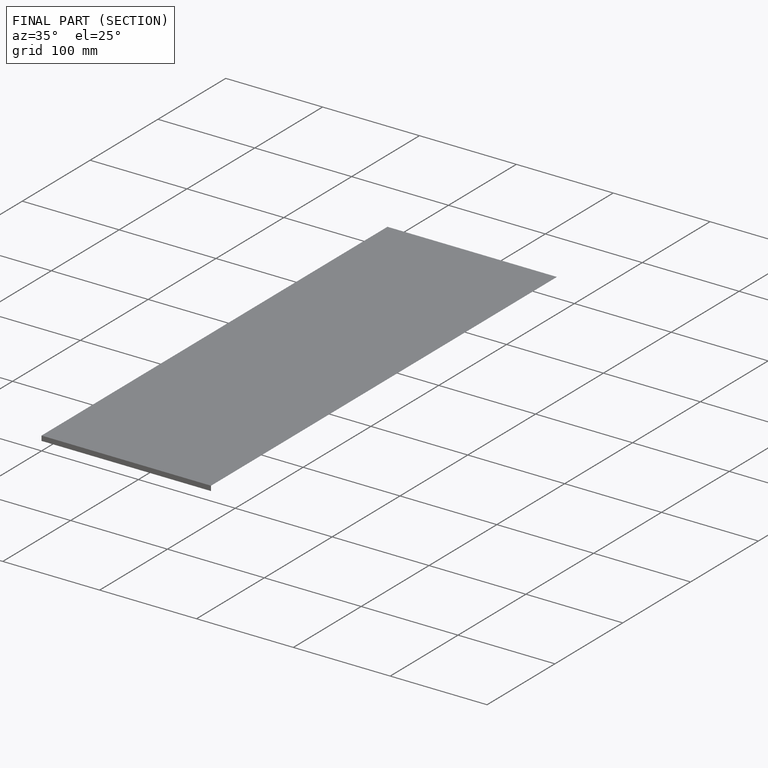
[diagram: finished part — half-section view (interior)]
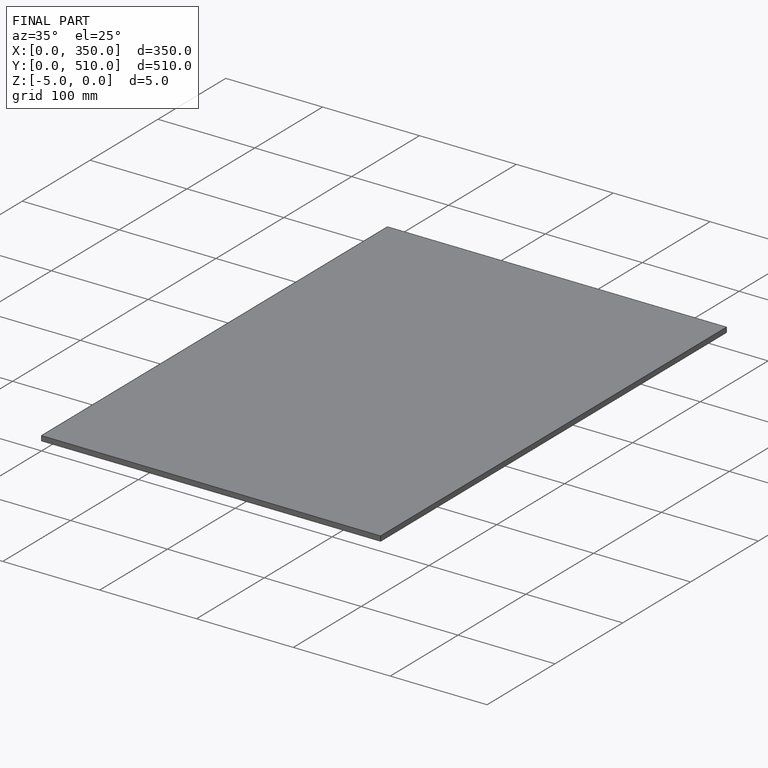
[diagram: finished part — iso view with bounding-box wireframe]
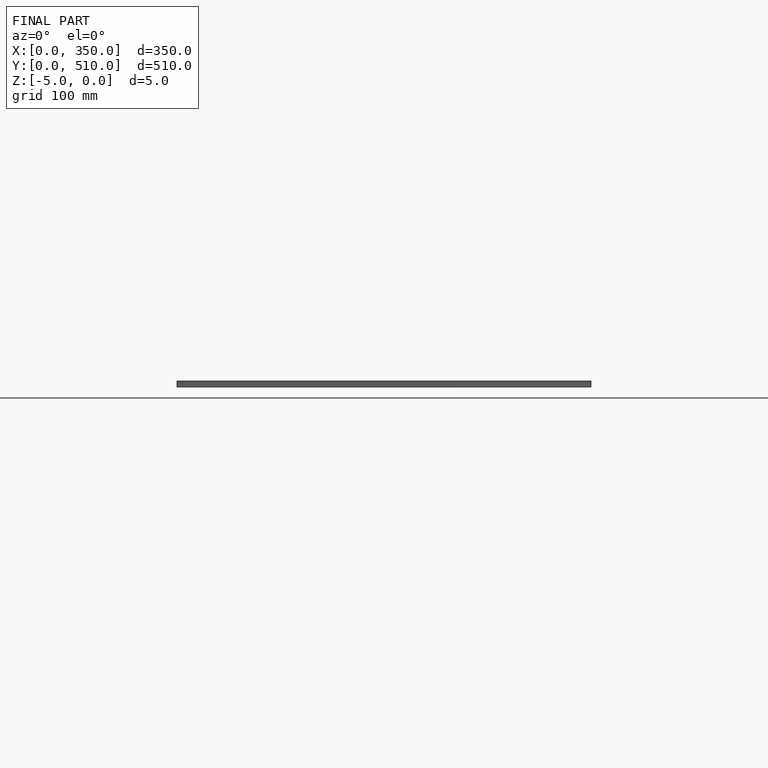
[diagram: finished part — front view with bounding-box wireframe]
